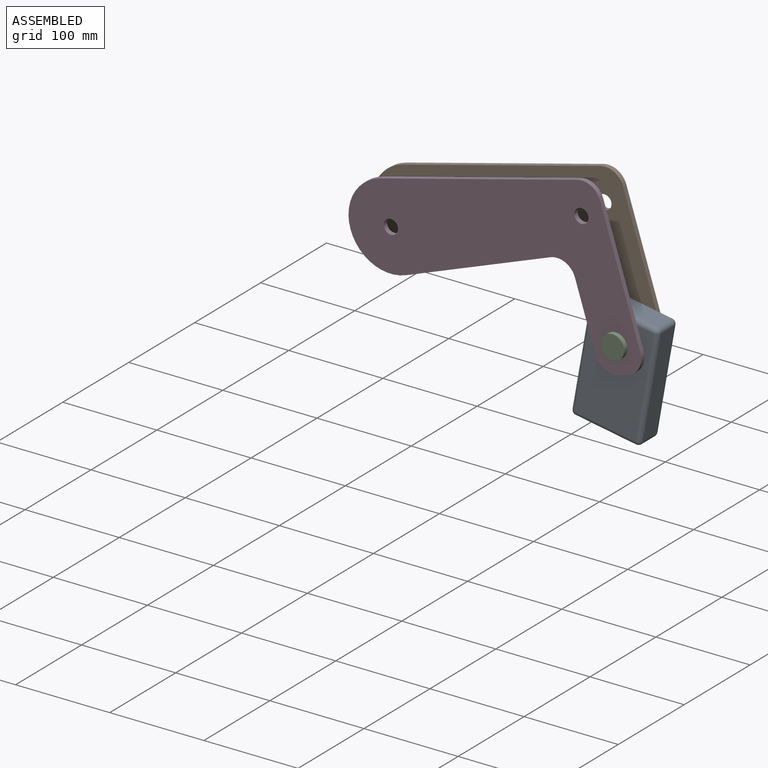
[diagram: assembled view]
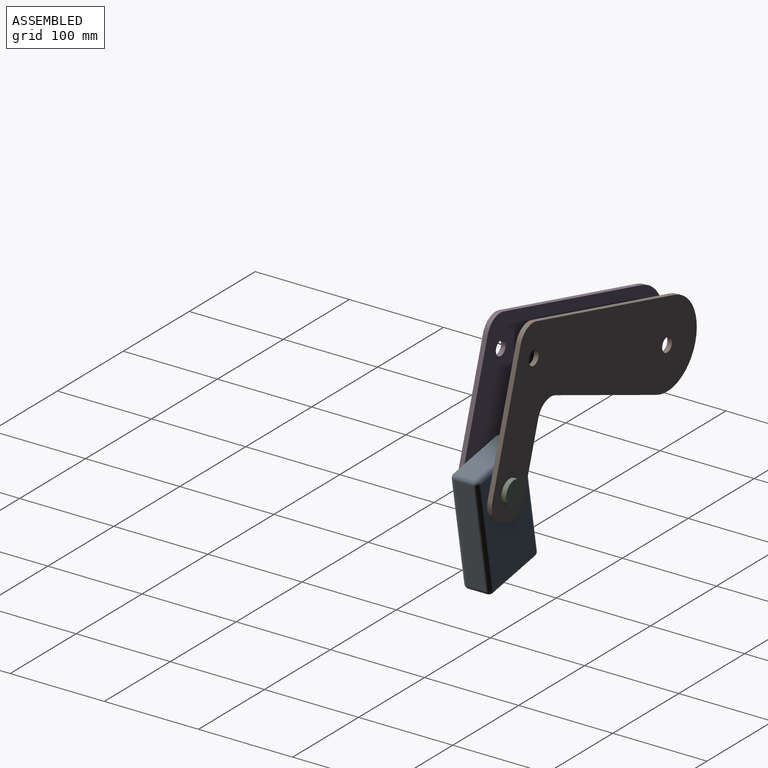
[diagram: assembled view, second angle]
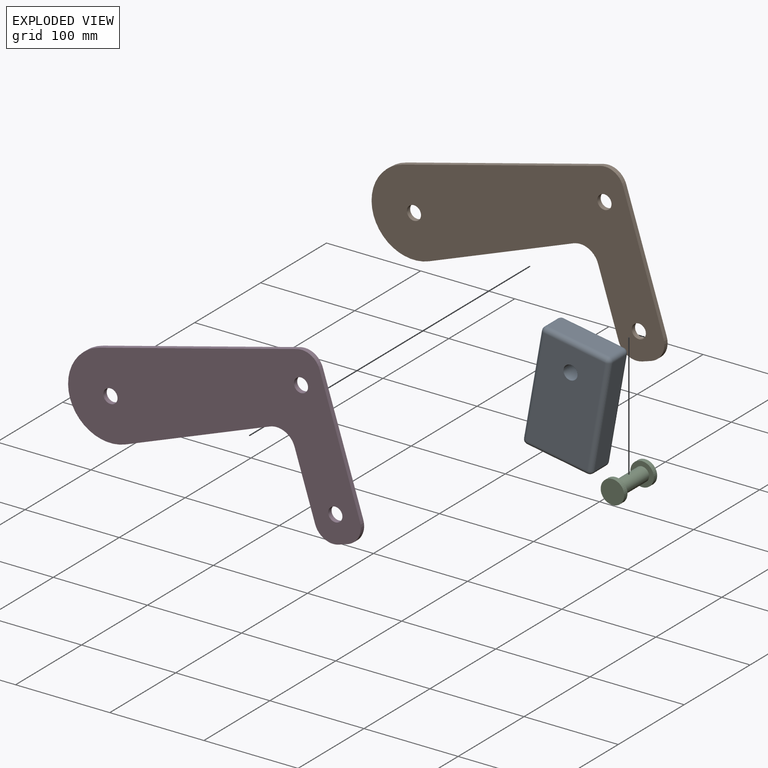
[diagram: exploded view]
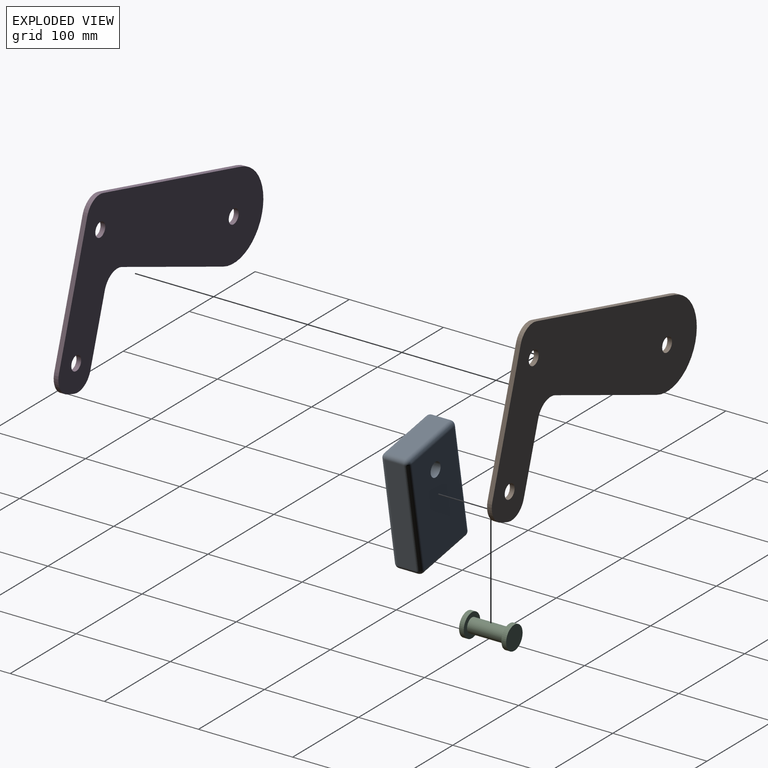
[diagram: exploded view, second angle]
ASSEMBLY  parts=4 mates=3
PART A: 27 faces, bbox 75x30x120 mm
  f0: plane 110x20mm, normal (-1,0,0), area 2200mm2, adj f15,f20,f23,f26
  f1: plane 65x20mm, normal (0,0,-1), area 1300mm2, adj f12,f21,f22,f26
  f2: plane 110x20mm, normal (1,0,0), area 2200mm2, adj f7,f11,f12,f13
  f3: plane 65x20mm, normal (0,0,1), area 1300mm2, adj f7,f10,f14,f15
  f4: cylinder r=7.5mm len=30mm, axis (0,1,0), area 1413.7mm2, adj f5,f6
  f5: plane 110x65mm, normal (0,-1,0), area 6973.3mm2, adj f4,f10,f11,f20,f21
  f6: plane 110x65mm, normal (0,1,0), area 6973.3mm2, adj f4,f13,f14,f22,f23
  f7: cylinder r=5mm len=20mm, axis (0,-1,0), area 157.1mm2, adj f2,f3,f8,f9
  f8: sphere r=5mm, area 39.3mm2, adj f7,f10,f11
  f9: sphere r=5mm, area 39.3mm2, adj f7,f13,f14
  f10: cylinder r=5mm len=65mm, axis (1,0,0), area 510.5mm2, adj f3,f5,f8,f16
  f11: cylinder r=5mm len=110mm, axis (0,0,-1), area 863.9mm2, adj f2,f5,f8,f17
  f12: cylinder r=5mm len=20mm, axis (0,1,0), area 157.1mm2, adj f1,f2,f17,f18
  f13: cylinder r=5mm len=110mm, axis (0,0,1), area 863.9mm2, adj f2,f6,f9,f18
  f14: cylinder r=5mm len=65mm, axis (-1,0,0), area 510.5mm2, adj f3,f6,f9,f19
  f15: cylinder r=5mm len=20mm, axis (0,1,0), area 157.1mm2, adj f0,f3,f16,f19
  f16: sphere r=5mm, area 39.3mm2, adj f10,f15,f20
  f17: sphere r=5mm, area 39.3mm2, adj f11,f12,f21
  f18: sphere r=5mm, area 39.3mm2, adj f12,f13,f22
  f19: sphere r=5mm, area 39.3mm2, adj f14,f15,f23
  f20: cylinder r=5mm len=110mm, axis (0,0,1), area 863.9mm2, adj f0,f5,f16,f24
  f21: cylinder r=5mm len=65mm, axis (-1,0,0), area 510.5mm2, adj f1,f5,f17,f24
  f22: cylinder r=5mm len=65mm, axis (1,0,0), area 510.5mm2, adj f1,f6,f18,f25
  f23: cylinder r=5mm len=110mm, axis (0,0,-1), area 863.9mm2, adj f0,f6,f19,f25
  f24: sphere r=5mm, area 39.3mm2, adj f20,f21,f26
  f25: sphere r=5mm, area 39.3mm2, adj f22,f23,f26
  f26: cylinder r=5mm len=20mm, axis (0,-1,0), area 157.1mm2, adj f0,f1,f24,f25
PART B: 15 faces, bbox 192.7x5x282.4 mm
  f0: plane 141.05x5mm, normal (0,0,1), area 705.2mm2, adj f9,f10,f11,f13
  f1: plane 216.05x11.64mm, normal (-1,0,0.05), area 1081.8mm2, adj f2,f9,f10,f13
  f2: cylinder r=45mm len=90mm, axis (0,-1,0), area 731.1mm2, adj f1,f3,f9,f10
  f3: plane 163.89x8.87mm, normal (1,0,0.05), area 820.6mm2, adj f2,f9,f10,f14
  f4: plane 71.69x5mm, normal (0,0,-1), area 358.5mm2, adj f9,f10,f12,f14
  f5: plane 10x5mm, normal (1,0,0), area 50mm2, adj f9,f10,f11,f12
  f6: cylinder r=7.5mm len=15mm, axis (0,-1,0), area 235.6mm2, adj f9,f10
  f7: cylinder r=7.5mm len=15mm, axis (0,-1,0), area 235.6mm2, adj f9,f10
  f8: cylinder r=7.5mm len=15mm, axis (0,-1,0), area 235.6mm2, adj f9,f10
  f9: plane 282.4x192.73mm, normal (0,1,0), area 26561.7mm2, adj f0,f1,f2,f3,f4,f5,f6,f7
  f10: plane 282.4x192.73mm, normal (0,-1,0), area 26561.7mm2, adj f0,f1,f2,f3,f4,f5,f6,f7
  f11: cylinder r=20mm len=20mm, axis (0,-1,0), area 157.1mm2, adj f0,f5,f9,f10
  f12: cylinder r=20mm len=20mm, axis (0,-1,0), area 157.1mm2, adj f4,f5,f9,f10
  f13: cylinder r=20mm len=19.97mm, axis (0,1,0), area 151.7mm2, adj f0,f1,f9,f10
  f14: cylinder r=20mm len=21.08mm, axis (0,1,0), area 162.5mm2, adj f3,f4,f9,f10
PART C: 7 faces, bbox 25x50x25 mm
  f0: cylinder r=7.5mm len=40mm, axis (0,1,0), area 1885mm2, adj f2,f5
  f1: cylinder r=12.5mm len=25mm, axis (0,1,0), area 392.7mm2, adj f2,f3
  f2: plane 25x25mm, normal (0,-1,0), area 314.2mm2, adj f0,f1
  f3: plane 25x25mm, normal (0,1,0), area 490.9mm2, adj f1
  f4: cylinder r=12.5mm len=25mm, axis (0,1,0), area 392.7mm2, adj f5,f6
  f5: plane 25x25mm, normal (0,1,0), area 314.2mm2, adj f0,f4
  f6: plane 25x25mm, normal (0,-1,0), area 490.9mm2, adj f4
PART D: 15 faces, bbox 192.7x5x282.4 mm
  f0: plane 141.05x5mm, normal (0,0,1), area 705.2mm2, adj f9,f10,f11,f13
  f1: plane 216.05x11.64mm, normal (-1,0,0.05), area 1081.8mm2, adj f2,f9,f10,f13
  f2: cylinder r=45mm len=90mm, axis (0,1,0), area 731.1mm2, adj f1,f3,f9,f10
  f3: plane 163.89x8.87mm, normal (1,0,0.05), area 820.6mm2, adj f2,f9,f10,f14
  f4: plane 71.69x5mm, normal (0,0,-1), area 358.5mm2, adj f9,f10,f12,f14
  f5: plane 10x5mm, normal (1,0,0), area 50mm2, adj f9,f10,f11,f12
  f6: cylinder r=7.5mm len=15mm, axis (0,1,0), area 235.6mm2, adj f9,f10
  f7: cylinder r=7.5mm len=15mm, axis (0,1,0), area 235.6mm2, adj f9,f10
  f8: cylinder r=7.5mm len=15mm, axis (0,1,0), area 235.6mm2, adj f9,f10
  f9: plane 282.4x192.73mm, normal (0,-1,0), area 26561.7mm2, adj f0,f1,f2,f3,f4,f5,f6,f7
  f10: plane 282.4x192.73mm, normal (0,1,0), area 26561.7mm2, adj f0,f1,f2,f3,f4,f5,f6,f7
  f11: cylinder r=20mm len=20mm, axis (0,1,0), area 157.1mm2, adj f0,f5,f9,f10
  f12: cylinder r=20mm len=20mm, axis (0,1,0), area 157.1mm2, adj f4,f5,f9,f10
  f13: cylinder r=20mm len=19.97mm, axis (0,-1,0), area 151.7mm2, adj f0,f1,f9,f10
  f14: cylinder r=20mm len=21.08mm, axis (0,-1,0), area 162.5mm2, adj f3,f4,f9,f10
PLACE A rot(axis=(0,1,0),10deg) t=(-31.77,30,-56.89)mm
PLACE B rot(axis=(0,1,0),72.3deg) t=(-218.04,0,74.95)mm
PLACE C rot(axis=(0,1,0),25deg) t=(20.79,40,25.24)mm
PLACE D rot(axis=(0,1,0),72.3deg) t=(-218.04,0,74.95)mm
MATE revolute A.f4 <-> C.f0  axis (0,1,0) through (20.79,15,25.24)mm
MATE revolute C.f0 <-> B.f7  axis (0,1,0) through (20.79,35,25.24)mm
MATE revolute D.f7 <-> C.f0  axis (0,-1,0) through (20.79,-5,25.24)mm
